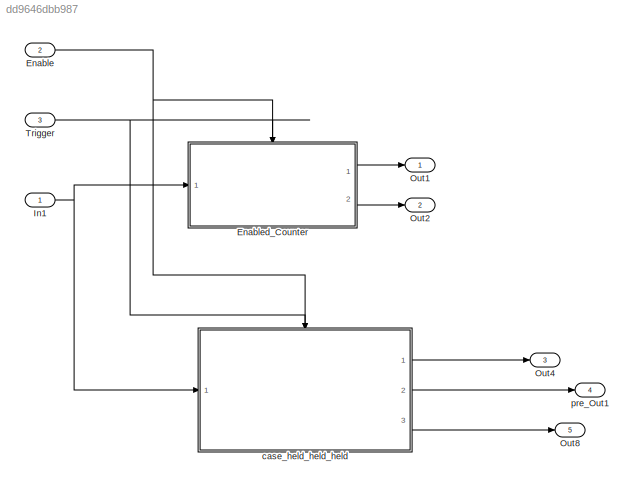
MODEL slx_dd9646dbb987
KIND model
CONFIG AbsTol = auto
CONFIG EnableMultiTasking = off
CONFIG FixedStep = 0.200000
CONFIG MaxStep = auto
CONFIG MinStep = auto
CONFIG RelTol = 1e-3
CONFIG SampleTimeConstraint = Unconstrained
CONFIG Solver = FixedStepDiscrete
CONFIG SolverName = FixedStepDiscrete
CONFIG StartTime = 0.0
CONFIG StopTime = 10.0
BLOCK [Inport] Enable
  IconDisplay = Port number
  Port = 2
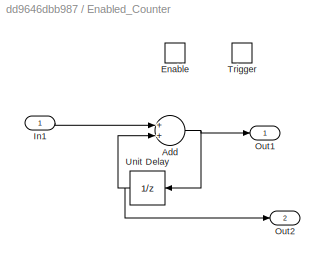
BLOCK [SubSystem] Enabled_Counter
  Ports = [1, 2, 1, 1]
  RequestExecContextInheritance = off
  TreatAsAtomicUnit = on
  Variant = off
BLOCK [Sum] Enabled_Counter/Add
  InputSameDT = off
  OutDataTypeStr = Inherit: Inherit via internal rule
  Ports = [2, 1]
  SaturateOnIntegerOverflow = off
BLOCK [EnablePort] Enabled_Counter/Enable
  Ports = []
BLOCK [Inport] Enabled_Counter/In1
  IconDisplay = Port number
BLOCK [Outport] Enabled_Counter/Out1
  IconDisplay = Port number
  InitialOutput = 0
BLOCK [Outport] Enabled_Counter/Out2
  IconDisplay = Port number
  Port = 2
BLOCK [TriggerPort] Enabled_Counter/Trigger
  PortDimensions = 1
  Ports = []
  StatesWhenEnabling = held
  VariantControl = (inherit)
BLOCK [UnitDelay] Enabled_Counter/Unit Delay
  InputProcessing = Elements as channels (sample based)
  SampleTime = -1
BLOCK [Inport] In1
  IconDisplay = Port number
BLOCK [Outport] Out1
  IconDisplay = Port number
BLOCK [Outport] Out2
  IconDisplay = Port number
  Port = 2
BLOCK [Outport] Out4
  IconDisplay = Port number
  Port = 3
BLOCK [Outport] Out8
  IconDisplay = Port number
  Port = 5
BLOCK [Inport] Trigger
  IconDisplay = Port number
  Port = 3
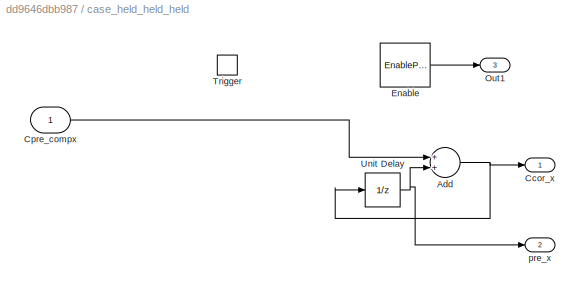
BLOCK [SubSystem] case_held_held_held
  Ports = [1, 3, 1, 1]
  RequestExecContextInheritance = off
  TreatAsAtomicUnit = on
  Variant = off
BLOCK [Sum] case_held_held_held/Add
  InputSameDT = off
  OutDataTypeStr = Inherit: Inherit via internal rule
  Ports = [2, 1]
  SaturateOnIntegerOverflow = off
BLOCK [Outport] case_held_held_held/Ccor_x
  IconDisplay = Port number
  InitialOutput = 0
BLOCK [Inport] case_held_held_held/Cpre_compx
  IconDisplay = Port number
  OutDataTypeStr = double
  PortDimensions = [1]
BLOCK [EnablePort] case_held_held_held/Enable
  Ports = [0, 1]
  ShowOutputPort = on
BLOCK [Outport] case_held_held_held/Out1
  IconDisplay = Port number
  Port = 3
BLOCK [TriggerPort] case_held_held_held/Trigger
  PortDimensions = 1
  Ports = []
  StatesWhenEnabling = held
  VariantControl = (inherit)
BLOCK [UnitDelay] case_held_held_held/Unit Delay
  InputProcessing = Elements as channels (sample based)
  SampleTime = -1.0000000000000000
BLOCK [Outport] case_held_held_held/pre_x
  IconDisplay = Port number
  InitialOutput = 0
  Port = 2
BLOCK [Outport] pre_Out1
  IconDisplay = Port number
  Port = 4
NET Enable:1 -> Enabled_Counter:enable, case_held_held_held:enable
NET Enabled_Counter/Add:1 -> Enabled_Counter/Out1:1, Enabled_Counter/Unit Delay:1
LINE Enabled_Counter/In1:1 -> Enabled_Counter/Add:1
NET Enabled_Counter/Unit Delay:1 -> Enabled_Counter/Add:2, Enabled_Counter/Out2:1
LINE Enabled_Counter:1 -> Out1:1
LINE Enabled_Counter:2 -> Out2:1
NET In1:1 -> Enabled_Counter:1, case_held_held_held:1
NET Trigger:1 -> Enabled_Counter:trigger, case_held_held_held:trigger
NET case_held_held_held/Add:1 -> case_held_held_held/Ccor_x:1, case_held_held_held/Unit Delay:1
LINE case_held_held_held/Cpre_compx:1 -> case_held_held_held/Add:1
LINE case_held_held_held/Enable:1 -> case_held_held_held/Out1:1
NET case_held_held_held/Unit Delay:1 -> case_held_held_held/Add:2, case_held_held_held/pre_x:1
LINE case_held_held_held:1 -> Out4:1
LINE case_held_held_held:2 -> pre_Out1:1
LINE case_held_held_held:3 -> Out8:1
note: NET lines group one-source signal fan-out (src -> all destinations, sorted); 1:1 wires keep LINE
